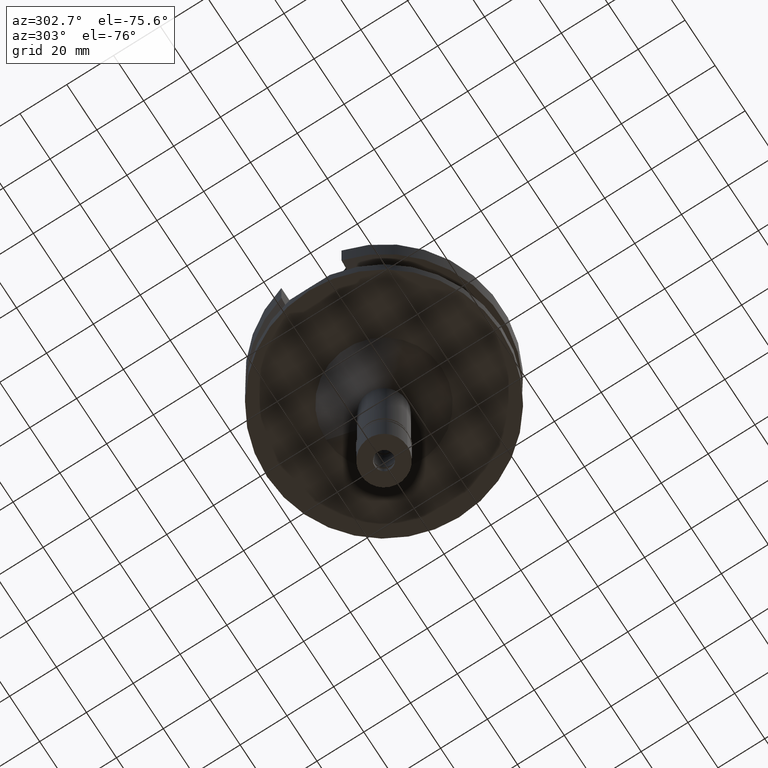
[diagram: clean part render]
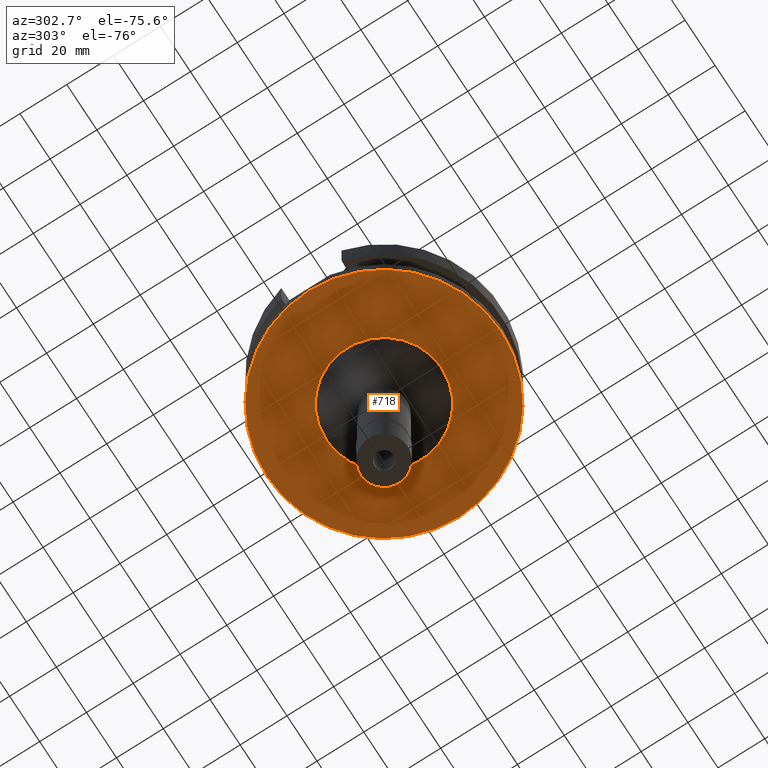
[diagram: same view with one face highlighted and labeled with its STEP entity id]
A machine part, auxiliary view. The second image highlights one B-rep face of the part: STEP entity #718.
In plain terms, the highlighted planar face has unit normal (0, 0, -1).
Its self-contained STEP definition (entity closure, byte-faithful):
#73 = CARTESIAN_POINT ( 'NONE',  ( 0.0000000000000000000, 24.75000000000000000, -38.00000000000000000 ) ) ;
#91 = EDGE_CURVE ( 'NONE', #1901, #2303, #246, .T. ) ;
#180 = DIRECTION ( 'NONE',  ( 0.0000000000000000000, 0.0000000000000000000, 1.000000000000000000 ) ) ;
#246 = CIRCLE ( 'NONE', #1072, 24.75000000000000000 ) ;
#262 = CARTESIAN_POINT ( 'NONE',  ( 0.0000000000000000000, 0.0000000000000000000, -38.00000000000000000 ) ) ;
#384 = EDGE_LOOP ( 'NONE', ( #651, #2921 ) ) ;
#389 = DIRECTION ( 'NONE',  ( 0.0000000000000000000, -1.000000000000000000, 0.0000000000000000000 ) ) ;
#468 = DIRECTION ( 'NONE',  ( 0.0000000000000000000, 0.0000000000000000000, 1.000000000000000000 ) ) ;
#624 = CIRCLE ( 'NONE', #2298, 50.00000000000000000 ) ;
#651 = ORIENTED_EDGE ( 'NONE', *, *, #2018, .F. ) ;
#676 = CARTESIAN_POINT ( 'NONE',  ( 0.0000000000000000000, 2.602251983507999750E-14, -38.00000000000000000 ) ) ;
#718 = ADVANCED_FACE ( 'NONE', ( #1485, #1924 ), #1208, .T. ) ;
#725 = DIRECTION ( 'NONE',  ( 0.0000000000000000000, -1.000000000000000000, 0.0000000000000000000 ) ) ;
#746 = DIRECTION ( 'NONE',  ( 0.0000000000000000000, 0.0000000000000000000, -1.000000000000000000 ) ) ;
#836 = CARTESIAN_POINT ( 'NONE',  ( 0.0000000000000000000, 50.00000000000000000, -38.00000000000000000 ) ) ;
#843 = ORIENTED_EDGE ( 'NONE', *, *, #91, .F. ) ;
#940 = CARTESIAN_POINT ( 'NONE',  ( 0.0000000000000000000, -24.75000000000000000, -38.00000000000000000 ) ) ;
#1072 = AXIS2_PLACEMENT_3D ( 'NONE', #2169, #2644, #725 ) ;
#1138 = EDGE_LOOP ( 'NONE', ( #2791, #843 ) ) ;
#1194 = CIRCLE ( 'NONE', #2823, 50.00000000000000000 ) ;
#1208 = PLANE ( 'NONE',  #2935 ) ;
#1240 = VERTEX_POINT ( 'NONE', #1672 ) ;
#1273 = CARTESIAN_POINT ( 'NONE',  ( 0.0000000000000000000, 0.0000000000000000000, -38.00000000000000000 ) ) ;
#1299 = CIRCLE ( 'NONE', #1647, 24.75000000000000000 ) ;
#1485 = FACE_OUTER_BOUND ( 'NONE', #384, .T. ) ;
#1637 = DIRECTION ( 'NONE',  ( 0.0000000000000000000, 1.000000000000000000, 0.0000000000000000000 ) ) ;
#1647 = AXIS2_PLACEMENT_3D ( 'NONE', #1273, #746, #2929 ) ;
#1672 = CARTESIAN_POINT ( 'NONE',  ( 0.0000000000000000000, -50.00000000000000000, -38.00000000000000000 ) ) ;
#1709 = VERTEX_POINT ( 'NONE', #836 ) ;
#1901 = VERTEX_POINT ( 'NONE', #940 ) ;
#1924 = FACE_BOUND ( 'NONE', #1138, .T. ) ;
#1939 = DIRECTION ( 'NONE',  ( 0.0000000000000000000, 0.0000000000000000000, -1.000000000000000000 ) ) ;
#2018 = EDGE_CURVE ( 'NONE', #1709, #1240, #624, .T. ) ;
#2118 = EDGE_CURVE ( 'NONE', #2303, #1901, #1299, .T. ) ;
#2169 = CARTESIAN_POINT ( 'NONE',  ( 0.0000000000000000000, 0.0000000000000000000, -38.00000000000000000 ) ) ;
#2298 = AXIS2_PLACEMENT_3D ( 'NONE', #676, #468, #1637 ) ;
#2303 = VERTEX_POINT ( 'NONE', #73 ) ;
#2430 = EDGE_CURVE ( 'NONE', #1240, #1709, #1194, .T. ) ;
#2644 = DIRECTION ( 'NONE',  ( 0.0000000000000000000, 0.0000000000000000000, -1.000000000000000000 ) ) ;
#2791 = ORIENTED_EDGE ( 'NONE', *, *, #2118, .F. ) ;
#2823 = AXIS2_PLACEMENT_3D ( 'NONE', #3103, #180, #389 ) ;
#2917 = DIRECTION ( 'NONE',  ( 0.0000000000000000000, -1.000000000000000000, 0.0000000000000000000 ) ) ;
#2921 = ORIENTED_EDGE ( 'NONE', *, *, #2430, .F. ) ;
#2929 = DIRECTION ( 'NONE',  ( 0.0000000000000000000, 1.000000000000000000, 0.0000000000000000000 ) ) ;
#2935 = AXIS2_PLACEMENT_3D ( 'NONE', #262, #1939, #2917 ) ;
#3103 = CARTESIAN_POINT ( 'NONE',  ( 0.0000000000000000000, 2.602251983507999750E-14, -38.00000000000000000 ) ) ;